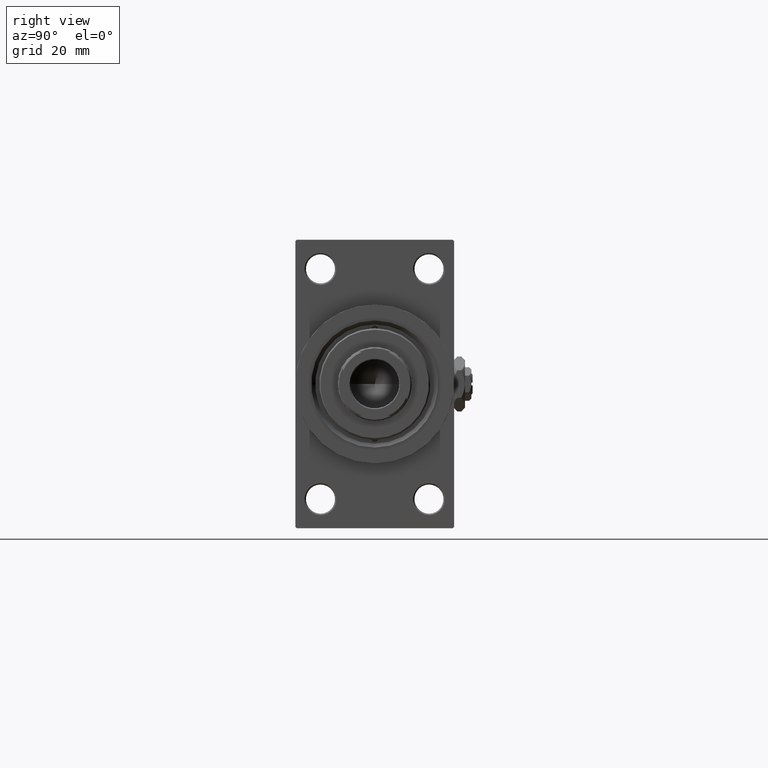
[diagram: clean part render]
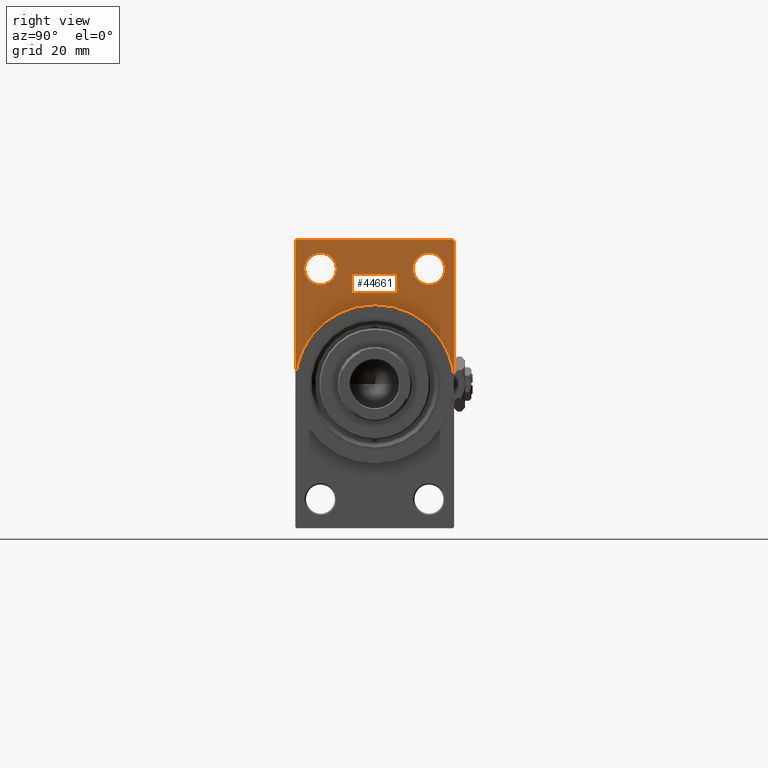
[diagram: same view with one face highlighted and labeled with its STEP entity id]
A machine part, right view. The second image highlights one B-rep face of the part: STEP entity #44661.
In plain terms, the highlighted planar face has unit normal (-1, 0, 0).
Its self-contained STEP definition (entity closure, byte-faithful):
#556 = EDGE_CURVE ( 'NONE', #5231, #28686, #46481, .T. ) ;
#616 = ORIENTED_EDGE ( 'NONE', *, *, #31976, .T. ) ;
#1365 = CIRCLE ( 'NONE', #6185, 30.00000000000000000 ) ;
#1552 = ORIENTED_EDGE ( 'NONE', *, *, #20598, .F. ) ;
#2241 = ORIENTED_EDGE ( 'NONE', *, *, #556, .T. ) ;
#3013 = CARTESIAN_POINT ( 'NONE',  ( 198.0000000000000000, 29.99999999999999645, 53.99999999999999289 ) ) ;
#3520 = LINE ( 'NONE', #22338, #20366 ) ;
#3746 = DIRECTION ( 'NONE',  ( 0.000000000000000000, 0.000000000000000000, 1.000000000000000000 ) ) ;
#4472 = CARTESIAN_POINT ( 'NONE',  ( 198.0000000000000000, -30.00000000000000000, 53.99999999999997158 ) ) ;
#5164 = EDGE_LOOP ( 'NONE', ( #30284, #48817 ) ) ;
#5190 = CARTESIAN_POINT ( 'NONE',  ( 198.0000000000000000, -30.00000000000000000, 53.99999999999997158 ) ) ;
#5231 = VERTEX_POINT ( 'NONE', #23116 ) ;
#6185 = AXIS2_PLACEMENT_3D ( 'NONE', #49566, #15221, #11720 ) ;
#6521 = VERTEX_POINT ( 'NONE', #11950 ) ;
#7111 = CARTESIAN_POINT ( 'NONE',  ( 198.0000000000000000, 29.99999999999999645, 54.49999999999999289 ) ) ;
#7357 = EDGE_CURVE ( 'NONE', #18974, #14447, #1365, .T. ) ;
#9053 = AXIS2_PLACEMENT_3D ( 'NONE', #44861, #24579, #39870 ) ;
#9199 = CARTESIAN_POINT ( 'NONE',  ( 198.0000000000000000, 20.50000000000000000, 43.50000000000000000 ) ) ;
#9864 = DIRECTION ( 'NONE',  ( 0.000000000000000000, -0.7071067811865474617, 0.7071067811865474617 ) ) ;
#10121 = CARTESIAN_POINT ( 'NONE',  ( 198.0000000000000000, 29.49999999999999645, 54.49999999999999289 ) ) ;
#10617 = LINE ( 'NONE', #7111, #11624 ) ;
#11104 = CIRCLE ( 'NONE', #31942, 30.00000000000000000 ) ;
#11121 = DIRECTION ( 'NONE',  ( -1.000000000000000000, 0.000000000000000000, -0.000000000000000000 ) ) ;
#11258 = CARTESIAN_POINT ( 'NONE',  ( 198.0000000000000000, -20.50000000000000000, 43.50000000000000000 ) ) ;
#11342 = DIRECTION ( 'NONE',  ( -1.000000000000000000, 0.000000000000000000, -0.000000000000000000 ) ) ;
#11469 = CARTESIAN_POINT ( 'NONE',  ( 198.0000000000000000, 30.00000000000000000, 0.000000000000000000 ) ) ;
#11624 = VECTOR ( 'NONE', #25930, 1000.000000000000000 ) ;
#11667 = EDGE_CURVE ( 'NONE', #14447, #12021, #11104, .T. ) ;
#11691 = DIRECTION ( 'NONE',  ( 0.000000000000000000, 0.000000000000000000, -1.000000000000000000 ) ) ;
#11720 = DIRECTION ( 'NONE',  ( 0.000000000000000000, 0.000000000000000000, -1.000000000000000000 ) ) ;
#11840 = CARTESIAN_POINT ( 'NONE',  ( 198.0000000000000000, -20.50000000000000000, 43.50000000000000000 ) ) ;
#11927 = CARTESIAN_POINT ( 'NONE',  ( 198.0000000000000000, 0.000000000000000000, 0.000000000000000000 ) ) ;
#11950 = CARTESIAN_POINT ( 'NONE',  ( 198.0000000000000000, -29.49999999999997513, 54.50000000000000000 ) ) ;
#12021 = VERTEX_POINT ( 'NONE', #14283 ) ;
#14283 = CARTESIAN_POINT ( 'NONE',  ( 198.0000000000000000, -30.00000000000000000, 0.000000000000000000 ) ) ;
#14447 = VERTEX_POINT ( 'NONE', #47418 ) ;
#15126 = CARTESIAN_POINT ( 'NONE',  ( 198.0000000000000000, 0.000000000000000000, 0.000000000000000000 ) ) ;
#15221 = DIRECTION ( 'NONE',  ( 1.000000000000000000, 0.000000000000000000, 0.000000000000000000 ) ) ;
#15378 = DIRECTION ( 'NONE',  ( -0.000000000000000000, 0.000000000000000000, 1.000000000000000000 ) ) ;
#16256 = LINE ( 'NONE', #42122, #23331 ) ;
#16322 = CIRCLE ( 'NONE', #25144, 6.000000000000032863 ) ;
#16719 = DIRECTION ( 'NONE',  ( -0.000000000000000000, -0.7071067811865451302, -0.7071067811865500152 ) ) ;
#16893 = ORIENTED_EDGE ( 'NONE', *, *, #46874, .T. ) ;
#17973 = DIRECTION ( 'NONE',  ( -1.000000000000000000, 0.000000000000000000, -0.000000000000000000 ) ) ;
#18829 = CARTESIAN_POINT ( 'NONE',  ( 198.0000000000000000, 20.50000000000000000, 37.49999999999996447 ) ) ;
#18872 = DIRECTION ( 'NONE',  ( 0.000000000000000000, 0.000000000000000000, 1.000000000000000000 ) ) ;
#18974 = VERTEX_POINT ( 'NONE', #11469 ) ;
#19217 = ORIENTED_EDGE ( 'NONE', *, *, #11667, .F. ) ;
#19553 = AXIS2_PLACEMENT_3D ( 'NONE', #11840, #11342, #18872 ) ;
#20366 = VECTOR ( 'NONE', #45395, 1000.000000000000000 ) ;
#20598 = EDGE_CURVE ( 'NONE', #41058, #18974, #16256, .T. ) ;
#21263 = CARTESIAN_POINT ( 'NONE',  ( 198.0000000000000000, -20.50000000000000000, 49.50000000000002842 ) ) ;
#21685 = FACE_OUTER_BOUND ( 'NONE', #45470, .T. ) ;
#22338 = CARTESIAN_POINT ( 'NONE',  ( 198.0000000000000000, -30.00000000000000000, 54.50000000000000000 ) ) ;
#22811 = DIRECTION ( 'NONE',  ( -1.000000000000000000, 0.000000000000000000, -0.000000000000000000 ) ) ;
#23116 = CARTESIAN_POINT ( 'NONE',  ( 198.0000000000000000, -20.50000000000000000, 37.49999999999996447 ) ) ;
#23331 = VECTOR ( 'NONE', #46354, 1000.000000000000000 ) ;
#24502 = DIRECTION ( 'NONE',  ( 0.000000000000000000, 0.000000000000000000, 1.000000000000000000 ) ) ;
#24579 = DIRECTION ( 'NONE',  ( -1.000000000000000000, 0.000000000000000000, -0.000000000000000000 ) ) ;
#25144 = AXIS2_PLACEMENT_3D ( 'NONE', #9199, #17973, #24502 ) ;
#25930 = DIRECTION ( 'NONE',  ( 0.000000000000000000, -1.000000000000000000, 1.156482317317871478E-16 ) ) ;
#26186 = FACE_BOUND ( 'NONE', #40921, .T. ) ;
#26388 = EDGE_CURVE ( 'NONE', #41994, #31126, #16322, .T. ) ;
#26927 = ORIENTED_EDGE ( 'NONE', *, *, #27235, .T. ) ;
#27235 = EDGE_CURVE ( 'NONE', #6521, #42106, #47065, .T. ) ;
#28370 = AXIS2_PLACEMENT_3D ( 'NONE', #15126, #11121, #15378 ) ;
#28467 = EDGE_CURVE ( 'NONE', #31126, #41994, #29898, .T. ) ;
#28686 = VERTEX_POINT ( 'NONE', #21263 ) ;
#29898 = CIRCLE ( 'NONE', #9053, 6.000000000000032863 ) ;
#30284 = ORIENTED_EDGE ( 'NONE', *, *, #26388, .T. ) ;
#30912 = EDGE_CURVE ( 'NONE', #28686, #5231, #37972, .T. ) ;
#31126 = VERTEX_POINT ( 'NONE', #46072 ) ;
#31942 = AXIS2_PLACEMENT_3D ( 'NONE', #11927, #35236, #11691 ) ;
#31976 = EDGE_CURVE ( 'NONE', #42106, #12021, #3520, .T. ) ;
#35236 = DIRECTION ( 'NONE',  ( 1.000000000000000000, 0.000000000000000000, 0.000000000000000000 ) ) ;
#35941 = CARTESIAN_POINT ( 'NONE',  ( 198.0000000000000000, 29.49999999999999645, 54.49999999999999289 ) ) ;
#36952 = ORIENTED_EDGE ( 'NONE', *, *, #7357, .F. ) ;
#36977 = PLANE ( 'NONE',  #28370 ) ;
#37972 = CIRCLE ( 'NONE', #19553, 6.000000000000032863 ) ;
#38112 = VERTEX_POINT ( 'NONE', #10121 ) ;
#39870 = DIRECTION ( 'NONE',  ( 0.000000000000000000, 0.000000000000000000, 1.000000000000000000 ) ) ;
#40906 = AXIS2_PLACEMENT_3D ( 'NONE', #11258, #22811, #3746 ) ;
#40921 = EDGE_LOOP ( 'NONE', ( #2241, #46764 ) ) ;
#41058 = VERTEX_POINT ( 'NONE', #3013 ) ;
#41480 = FACE_BOUND ( 'NONE', #5164, .T. ) ;
#41994 = VERTEX_POINT ( 'NONE', #18829 ) ;
#42106 = VERTEX_POINT ( 'NONE', #5190 ) ;
#42122 = CARTESIAN_POINT ( 'NONE',  ( 198.0000000000000000, 29.99999999999999645, 54.49999999999999289 ) ) ;
#42628 = EDGE_CURVE ( 'NONE', #38112, #6521, #10617, .T. ) ;
#42787 = VECTOR ( 'NONE', #16719, 1000.000000000000114 ) ;
#44218 = LINE ( 'NONE', #35941, #46872 ) ;
#44661 = ADVANCED_FACE ( 'NONE', ( #26186, #41480, #21685 ), #36977, .F. ) ;
#44861 = CARTESIAN_POINT ( 'NONE',  ( 198.0000000000000000, 20.50000000000000000, 43.50000000000000000 ) ) ;
#45395 = DIRECTION ( 'NONE',  ( 0.000000000000000000, 0.000000000000000000, -1.000000000000000000 ) ) ;
#45470 = EDGE_LOOP ( 'NONE', ( #47159, #26927, #616, #19217, #36952, #1552, #16893 ) ) ;
#46072 = CARTESIAN_POINT ( 'NONE',  ( 198.0000000000000000, 20.50000000000000000, 49.50000000000002842 ) ) ;
#46354 = DIRECTION ( 'NONE',  ( 0.000000000000000000, 0.000000000000000000, -1.000000000000000000 ) ) ;
#46481 = CIRCLE ( 'NONE', #40906, 6.000000000000032863 ) ;
#46764 = ORIENTED_EDGE ( 'NONE', *, *, #30912, .T. ) ;
#46872 = VECTOR ( 'NONE', #9864, 1000.000000000000114 ) ;
#46874 = EDGE_CURVE ( 'NONE', #41058, #38112, #44218, .T. ) ;
#47065 = LINE ( 'NONE', #4472, #42787 ) ;
#47159 = ORIENTED_EDGE ( 'NONE', *, *, #42628, .T. ) ;
#47418 = CARTESIAN_POINT ( 'NONE',  ( 198.0000000000000000, 0.000000000000000000, 30.00000000000000000 ) ) ;
#48817 = ORIENTED_EDGE ( 'NONE', *, *, #28467, .T. ) ;
#49566 = CARTESIAN_POINT ( 'NONE',  ( 198.0000000000000000, 0.000000000000000000, 0.000000000000000000 ) ) ;